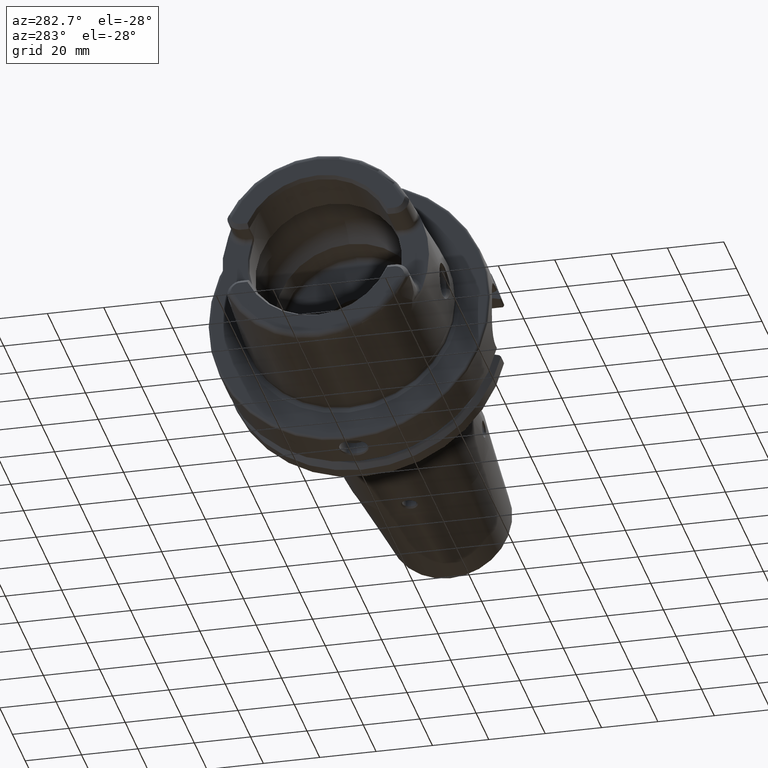
[diagram: clean part render]
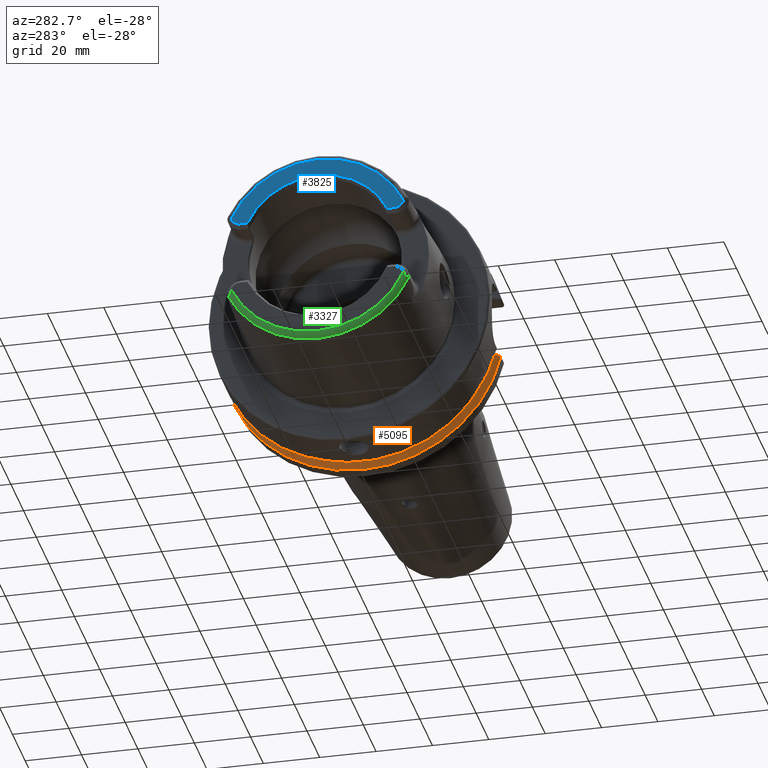
[diagram: same view with three faces highlighted in distinct colors, each labeled with its STEP entity id]
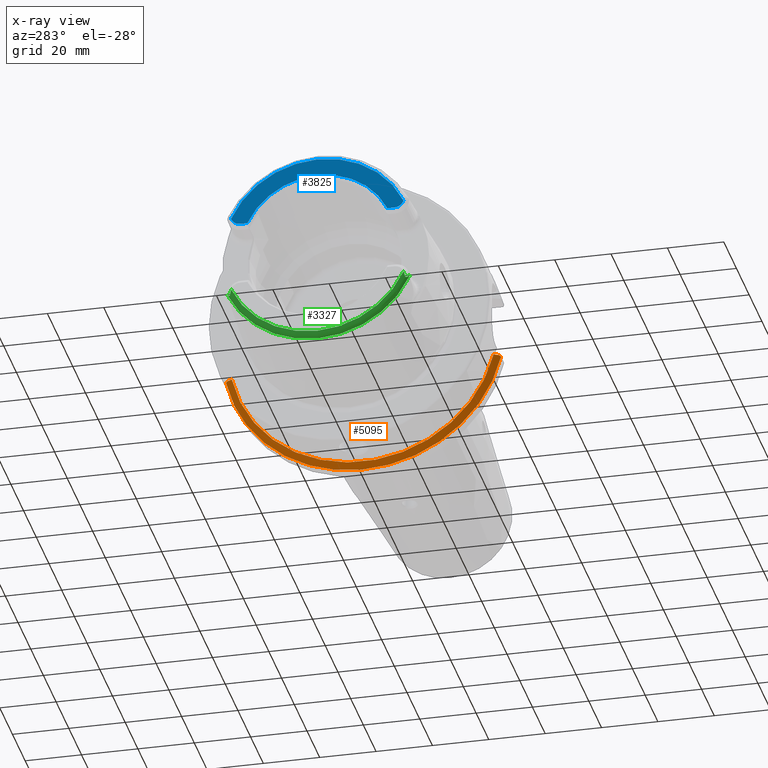
[diagram: x-ray of the same camera — body ghosted, the three highlighted faces saturated]
A machine part, auxiliary view with three faces highlighted in distinct colors.
The next image is the same camera in x-ray (body ghosted, the three faces saturated) — at least one of them is partly hidden behind the body in this view.
Their STEP definitions:

[orange] entity #5095 — the highlighted conical surface has half-angle 60 deg.
#1736=CARTESIAN_POINT('',(2.292384936729E1,-4.82E1,-1.1E1));
#1737=CARTESIAN_POINT('',(2.297737330862E1,-4.827742102738E1,
-1.107742102738E1));
#1738=CARTESIAN_POINT('',(2.308485485635E1,-4.843271839288E1,
-1.123271839288E1));
#1739=CARTESIAN_POINT('',(2.319320386701E1,-4.858892633407E1,
-1.138892633407E1));
#1740=CARTESIAN_POINT('',(2.324759526419E1,-4.866725793949E1,
-1.146725793949E1));
#1742=CARTESIAN_POINT('',(2.324759526419E1,0.E0,0.E0));
#1743=DIRECTION('',(1.E0,0.E0,0.E0));
#1744=DIRECTION('',(0.E0,-9.733451587899E-1,-2.293451587899E-1));
#1745=AXIS2_PLACEMENT_3D('',#1742,#1743,#1744);
#1747=CARTESIAN_POINT('',(2.324759526419E1,4.890531149727E1,-1.040531149727E1));
#1748=CARTESIAN_POINT('',(2.321659280648E1,4.886004318849E1,-1.036004318849E1));
#1749=CARTESIAN_POINT('',(2.315473667974E1,4.876966236934E1,-1.026966236934E1));
#1750=CARTESIAN_POINT('',(2.306239922900E1,4.863455921040E1,-1.013455921040E1));
#1751=CARTESIAN_POINT('',(2.300113781600E1,4.854480120102E1,-1.004480120102E1));
#1752=CARTESIAN_POINT('',(2.297058139228E1,4.85E1,-1.E1));
#1754=CARTESIAN_POINT('',(2.1875E1,4.656083740331E1,-1.E1));
#1755=CARTESIAN_POINT('',(2.199522131820E1,4.677381522932E1,-1.E1));
#1756=CARTESIAN_POINT('',(2.223667140630E1,4.720142676613E1,-1.E1));
#1757=CARTESIAN_POINT('',(2.260186249560E1,4.784780652456E1,-1.E1));
#1758=CARTESIAN_POINT('',(2.284733970784E1,4.828204899002E1,-1.E1));
#1759=CARTESIAN_POINT('',(2.297058139228E1,4.85E1,-1.E1));
#1761=CARTESIAN_POINT('',(2.1875E1,0.E0,0.E0));
#1762=DIRECTION('',(-1.E0,0.E0,0.E0));
#1763=DIRECTION('',(0.E0,9.777047459300E-1,-2.099843560504E-1));
#1764=AXIS2_PLACEMENT_3D('',#1761,#1762,#1763);
#1766=CARTESIAN_POINT('',(2.292384936729E1,-4.82E1,-1.1E1));
#1767=CARTESIAN_POINT('',(2.280585161208E1,-4.799036718895E1,-1.1E1));
#1768=CARTESIAN_POINT('',(2.257082792350E1,-4.757269268648E1,-1.1E1));
#1769=CARTESIAN_POINT('',(2.222121423283E1,-4.695095970886E1,-1.1E1));
#1770=CARTESIAN_POINT('',(2.199008036717E1,-4.653964225334E1,-1.1E1));
#1771=CARTESIAN_POINT('',(2.1875E1,-4.633477721644E1,-1.1E1));
#2850=CARTESIAN_POINT('',(2.1875E1,4.656083740331E1,-1.E1));
#2851=VERTEX_POINT('',#2850);
#2874=CARTESIAN_POINT('',(2.1875E1,-4.633477721644E1,-1.1E1));
#2875=VERTEX_POINT('',#2874);
#3100=VERTEX_POINT('',#1747);
#3101=VERTEX_POINT('',#1752);
#3116=VERTEX_POINT('',#1736);
#3117=VERTEX_POINT('',#1740);
#5081=CARTESIAN_POINT('',(2.256129763210E1,0.E0,0.E0));
#5082=DIRECTION('',(1.E0,0.E0,0.E0));
#5083=DIRECTION('',(0.E0,0.E0,1.E0));
#5084=AXIS2_PLACEMENT_3D('',#5081,#5082,#5083);
#5085=CONICAL_SURFACE('',#5084,4.881129763210E1,6.E1);
#5086=ORIENTED_EDGE('',*,*,#4789,.T.);
#5087=ORIENTED_EDGE('',*,*,#4683,.T.);
#5088=ORIENTED_EDGE('',*,*,#4974,.T.);
#5089=ORIENTED_EDGE('',*,*,#5000,.F.);
#5091=ORIENTED_EDGE('',*,*,#5090,.T.);
#5092=ORIENTED_EDGE('',*,*,#5047,.F.);
#5093=EDGE_LOOP('',(#5086,#5087,#5088,#5089,#5091,#5092));
#5094=FACE_OUTER_BOUND('',#5093,.F.);
#5095=ADVANCED_FACE('',(#5094),#5085,.T.);
#1741=B_SPLINE_CURVE_WITH_KNOTS('',3,(#1736,#1737,#1738,#1739,#1740),
.UNSPECIFIED.,.F.,.F.,(4,1,4),(0.E0,5.E-1,1.E0),.UNSPECIFIED.);
#1746=CIRCLE('',#1745,5.E1);
#1753=B_SPLINE_CURVE_WITH_KNOTS('',3,(#1747,#1748,#1749,#1750,#1751,#1752),
.UNSPECIFIED.,.F.,.F.,(4,1,1,4),(0.E0,3.333333333333E-1,6.666666666667E-1,1.E0),
.UNSPECIFIED.);
#1760=B_SPLINE_CURVE_WITH_KNOTS('',3,(#1754,#1755,#1756,#1757,#1758,#1759),
.UNSPECIFIED.,.F.,.F.,(4,1,1,4),(0.E0,3.333333333333E-1,6.666666666667E-1,1.E0),
.UNSPECIFIED.);
#1765=CIRCLE('',#1764,4.762259526419E1);
#1772=B_SPLINE_CURVE_WITH_KNOTS('',3,(#1766,#1767,#1768,#1769,#1770,#1771),
.UNSPECIFIED.,.F.,.F.,(4,1,1,4),(0.E0,3.333333333333E-1,6.666666666667E-1,1.E0),
.UNSPECIFIED.);
#4683=EDGE_CURVE('',#3117,#3100,#1746,.T.);
#4789=EDGE_CURVE('',#3116,#3117,#1741,.T.);
#4974=EDGE_CURVE('',#3100,#3101,#1753,.T.);
#5000=EDGE_CURVE('',#2851,#3101,#1760,.T.);
#5047=EDGE_CURVE('',#3116,#2875,#1772,.T.);
#5090=EDGE_CURVE('',#2851,#2875,#1765,.T.);

[blue] entity #3825 — the highlighted planar face has unit normal (1, 0, 0).
#728=DIRECTION('',(0.E0,1.E0,0.E0));
#729=VECTOR('',#728,2.542208185169E0);
#730=CARTESIAN_POINT('',(-5.E1,2.482779181483E1,1.151E1));
#731=LINE('',#730,#729);
#732=CARTESIAN_POINT('',(-5.E1,2.737E1,1.489E1));
#733=DIRECTION('',(1.E0,0.E0,0.E0));
#734=DIRECTION('',(0.E0,-1.261318465846E-14,-1.E0));
#735=AXIS2_PLACEMENT_3D('',#732,#733,#734);
#737=CARTESIAN_POINT('',(-5.E1,-2.737E1,1.489E1));
#738=DIRECTION('',(-1.E0,0.E0,0.E0));
#739=DIRECTION('',(0.E0,1.261318465846E-14,-1.E0));
#740=AXIS2_PLACEMENT_3D('',#737,#738,#739);
#742=DIRECTION('',(0.E0,-1.E0,0.E0));
#743=VECTOR('',#742,2.542208185169E0);
#744=CARTESIAN_POINT('',(-5.E1,-2.482779181483E1,1.151E1));
#745=LINE('',#744,#743);
#815=CARTESIAN_POINT('',(-5.E1,-2.664535259100E-14,0.E0));
#816=DIRECTION('',(1.E0,0.E0,0.E0));
#817=DIRECTION('',(0.E0,9.072487308076E-1,4.205945083428E-1));
#818=AXIS2_PLACEMENT_3D('',#815,#816,#817);
#871=CARTESIAN_POINT('',(-5.E1,0.E0,0.E0));
#872=DIRECTION('',(-1.E0,0.E0,0.E0));
#873=DIRECTION('',(0.E0,-9.107116187708E-1,4.130427912890E-1));
#874=AXIS2_PLACEMENT_3D('',#871,#872,#873);
#3017=CARTESIAN_POINT('',(-5.E1,-2.737E1,1.151E1));
#3019=VERTEX_POINT('',#3017);
#3021=CARTESIAN_POINT('',(-5.E1,-2.482779181483E1,1.151E1));
#3022=VERTEX_POINT('',#3021);
#3023=CARTESIAN_POINT('',(-5.E1,-3.059420437526E1,1.387564988957E1));
#3024=VERTEX_POINT('',#3023);
#3031=CARTESIAN_POINT('',(-5.E1,2.737E1,1.151E1));
#3033=VERTEX_POINT('',#3031);
#3035=CARTESIAN_POINT('',(-5.E1,2.482779181483E1,1.151E1));
#3036=VERTEX_POINT('',#3035);
#3037=CARTESIAN_POINT('',(-5.E1,3.059420437526E1,1.387564988957E1));
#3038=VERTEX_POINT('',#3037);
#3806=CARTESIAN_POINT('',(-5.E1,0.E0,0.E0));
#3807=DIRECTION('',(1.E0,0.E0,0.E0));
#3808=DIRECTION('',(0.E0,0.E0,1.E0));
#3809=AXIS2_PLACEMENT_3D('',#3806,#3807,#3808);
#3810=PLANE('',#3809);
#3812=ORIENTED_EDGE('',*,*,#3811,.T.);
#3814=ORIENTED_EDGE('',*,*,#3813,.T.);
#3816=ORIENTED_EDGE('',*,*,#3815,.F.);
#3818=ORIENTED_EDGE('',*,*,#3817,.F.);
#3820=ORIENTED_EDGE('',*,*,#3819,.F.);
#3822=ORIENTED_EDGE('',*,*,#3821,.F.);
#3823=EDGE_LOOP('',(#3812,#3814,#3816,#3818,#3820,#3822));
#3824=FACE_OUTER_BOUND('',#3823,.F.);
#3825=ADVANCED_FACE('',(#3824),#3810,.F.);
#736=CIRCLE('',#735,3.38E0);
#741=CIRCLE('',#740,3.38E0);
#819=CIRCLE('',#818,2.736602540378E1);
#875=CIRCLE('',#874,3.359373455294E1);
#3811=EDGE_CURVE('',#3036,#3033,#731,.T.);
#3813=EDGE_CURVE('',#3033,#3038,#736,.T.);
#3815=EDGE_CURVE('',#3024,#3038,#875,.T.);
#3817=EDGE_CURVE('',#3019,#3024,#741,.T.);
#3819=EDGE_CURVE('',#3022,#3019,#745,.T.);
#3821=EDGE_CURVE('',#3036,#3022,#819,.T.);

[green] entity #3327 — the highlighted toroidal blend (fillet) surface has major radius 33.5937 mm and minor (blend) radius 2 mm.
#2=CARTESIAN_POINT('',(-4.810007223652E1,0.E0,0.E0));
#3=DIRECTION('',(-1.E0,0.E0,0.E0));
#4=DIRECTION('',(0.E0,9.060367502718E-1,-4.231990160161E-1));
#5=AXIS2_PLACEMENT_3D('',#2,#3,#4);
#95=CARTESIAN_POINT('',(-5.E1,3.059420437526E1,-1.387564988957E1));
#96=CARTESIAN_POINT('',(-5.E1,3.062937655328E1,-1.398744786651E1));
#97=CARTESIAN_POINT('',(-4.999089188957E1,3.069324847764E1,-1.420067359598E1));
#98=CARTESIAN_POINT('',(-4.995858869338E1,3.077190565272E1,-1.449032562099E1));
#99=CARTESIAN_POINT('',(-4.991298144907E1,3.083750696256E1,-1.475509899818E1));
#100=CARTESIAN_POINT('',(-4.985776612535E1,3.089308041130E1,-1.499557576183E1));
#101=CARTESIAN_POINT('',(-4.979495680989E1,3.094232778046E1,-1.521393310901E1));
#102=CARTESIAN_POINT('',(-4.972360438561E1,3.099010432134E1,-1.541404156234E1));
#103=CARTESIAN_POINT('',(-4.964589492684E1,3.103958064051E1,-1.558627230071E1));
#104=CARTESIAN_POINT('',(-4.955723649352E1,3.109959946618E1,-1.573108074587E1));
#105=CARTESIAN_POINT('',(-4.945312232293E1,3.118225704897E1,-1.583194799806E1));
#106=CARTESIAN_POINT('',(-4.933404762138E1,3.129828990280E1,-1.585890352672E1));
#107=CARTESIAN_POINT('',(-4.921353185632E1,3.143432137689E1,-1.580868497085E1));
#108=CARTESIAN_POINT('',(-4.910770149308E1,3.156079240615E1,-1.572350157184E1));
#109=CARTESIAN_POINT('',(-4.899971401366E1,3.169137441366E1,-1.561087951899E1));
#110=CARTESIAN_POINT('',(-4.888724667350E1,3.182575845255E1,-1.547332317816E1));
#111=CARTESIAN_POINT('',(-4.876720056629E1,3.196480350055E1,-1.531105099350E1));
#112=CARTESIAN_POINT('',(-4.863888427929E1,3.210676820877E1,-1.512487959147E1));
#113=CARTESIAN_POINT('',(-4.854739858617E1,3.220223751003E1,-1.498502512149E1));
#114=CARTESIAN_POINT('',(-4.85E1,3.224995489266E1,-1.491098202986E1));
#116=CARTESIAN_POINT('',(-5.E1,0.E0,0.E0));
#117=DIRECTION('',(-1.E0,0.E0,0.E0));
#118=DIRECTION('',(0.E0,9.107116187708E-1,-4.130427912890E-1));
#119=AXIS2_PLACEMENT_3D('',#116,#117,#118);
#121=CARTESIAN_POINT('',(-4.85E1,-3.224995489266E1,-1.491098202986E1));
#122=CARTESIAN_POINT('',(-4.855074283124E1,-3.219887077202E1,
-1.499024929090E1));
#123=CARTESIAN_POINT('',(-4.864891901277E1,-3.209619950703E1,
-1.514015471598E1));
#124=CARTESIAN_POINT('',(-4.878912089962E1,-3.194004929274E1,
-1.534209463768E1));
#125=CARTESIAN_POINT('',(-4.891831838915E1,-3.178905698415E1,
-1.551344431121E1));
#126=CARTESIAN_POINT('',(-4.903730232697E1,-3.164595595511E1,
-1.565300763746E1));
#127=CARTESIAN_POINT('',(-4.914734329147E1,-3.151301698889E1,
-1.575904280759E1));
#128=CARTESIAN_POINT('',(-4.925763874430E1,-3.138317803280E1,
-1.583362860408E1));
#129=CARTESIAN_POINT('',(-4.937621572287E1,-3.125475950018E1,
-1.585888491049E1));
#130=CARTESIAN_POINT('',(-4.949050208407E1,-3.115065554436E1,
-1.580438686198E1));
#131=CARTESIAN_POINT('',(-4.958842501649E1,-3.107775531862E1,
-1.568588731476E1));
#132=CARTESIAN_POINT('',(-4.966941039193E1,-3.102457547468E1,
-1.553784165399E1));
#133=CARTESIAN_POINT('',(-4.973987881872E1,-3.097951334374E1,
-1.537111166122E1));
#134=CARTESIAN_POINT('',(-4.980452834500E1,-3.093525193114E1,
-1.518263258997E1));
#135=CARTESIAN_POINT('',(-4.986374342687E1,-3.088762876373E1,
-1.497160831411E1));
#136=CARTESIAN_POINT('',(-4.991671029636E1,-3.083289801661E1,
-1.473589472194E1));
#137=CARTESIAN_POINT('',(-4.996068715475E1,-3.076778033206E1,
-1.447461057182E1));
#138=CARTESIAN_POINT('',(-4.999139168833E1,-3.069063123317E1,
-1.419178376552E1));
#139=CARTESIAN_POINT('',(-5.E1,-3.062836175552E1,-1.398422223922E1));
#140=CARTESIAN_POINT('',(-5.E1,-3.059420437526E1,-1.387564988957E1));
#167=CARTESIAN_POINT('',(-4.810007223652E1,3.224696179732E1,-1.506217324853E1));
#168=CARTESIAN_POINT('',(-4.816954631861E1,3.224727588721E1,-1.505327637031E1));
#169=CARTESIAN_POINT('',(-4.830558220453E1,3.224853348003E1,-1.501730718075E1));
#170=CARTESIAN_POINT('',(-4.843563660986E1,3.224978303287E1,-1.495095280569E1));
#171=CARTESIAN_POINT('',(-4.85E1,3.224995489266E1,-1.491098202986E1));
#563=CARTESIAN_POINT('',(-4.810007223652E1,0.E0,0.E0));
#564=DIRECTION('',(-1.E0,0.E0,0.E0));
#565=DIRECTION('',(0.E0,0.E0,-1.E0));
#566=AXIS2_PLACEMENT_3D('',#563,#564,#565);
#718=CARTESIAN_POINT('',(-4.85E1,-3.224995489266E1,-1.491098202986E1));
#719=CARTESIAN_POINT('',(-4.843511487337E1,-3.224978163976E1,
-1.495127681306E1));
#720=CARTESIAN_POINT('',(-4.830439162895E1,-3.224851898027E1,
-1.501778051965E1));
#721=CARTESIAN_POINT('',(-4.816894104837E1,-3.224727315081E1,
-1.505335388145E1));
#722=CARTESIAN_POINT('',(-4.810007223652E1,-3.224696179732E1,
-1.506217324853E1));
#2991=CARTESIAN_POINT('',(-4.810007223652E1,0.E0,-3.559122937082E1));
#2992=CARTESIAN_POINT('',(-4.810007223652E1,-3.224696179732E1,
-1.506217324853E1));
#2993=VERTEX_POINT('',#2991);
#2994=VERTEX_POINT('',#2992);
#2995=CARTESIAN_POINT('',(-4.810007223652E1,3.224696179732E1,
-1.506217324853E1));
#2996=VERTEX_POINT('',#2995);
#3007=CARTESIAN_POINT('',(-5.E1,-3.059420437526E1,-1.387564988957E1));
#3008=VERTEX_POINT('',#3007);
#3013=CARTESIAN_POINT('',(-4.85E1,-3.224995489266E1,-1.491098202986E1));
#3014=VERTEX_POINT('',#3013);
#3051=CARTESIAN_POINT('',(-5.E1,3.059420437526E1,-1.387564988957E1));
#3052=VERTEX_POINT('',#3051);
#3055=CARTESIAN_POINT('',(-4.85E1,3.224995489266E1,-1.491098202986E1));
#3056=VERTEX_POINT('',#3055);
#3307=CARTESIAN_POINT('',(-4.8E1,0.E0,0.E0));
#3308=DIRECTION('',(1.E0,0.E0,0.E0));
#3309=DIRECTION('',(0.E0,-9.999995644445E-1,9.333331978271E-4));
#3310=AXIS2_PLACEMENT_3D('',#3307,#3308,#3309);
#3311=TOROIDAL_SURFACE('',#3310,3.359373455294E1,2.E0);
#3313=ORIENTED_EDGE('',*,*,#3312,.F.);
#3315=ORIENTED_EDGE('',*,*,#3314,.T.);
#3317=ORIENTED_EDGE('',*,*,#3316,.F.);
#3319=ORIENTED_EDGE('',*,*,#3318,.T.);
#3321=ORIENTED_EDGE('',*,*,#3320,.F.);
#3322=ORIENTED_EDGE('',*,*,#3278,.F.);
#3324=ORIENTED_EDGE('',*,*,#3323,.T.);
#3325=EDGE_LOOP('',(#3313,#3315,#3317,#3319,#3321,#3322,#3324));
#3326=FACE_OUTER_BOUND('',#3325,.F.);
#3327=ADVANCED_FACE('',(#3326),#3311,.T.);
#6=CIRCLE('',#5,3.559122937082E1);
#115=B_SPLINE_CURVE_WITH_KNOTS('',3,(#95,#96,#97,#98,#99,#100,#101,#102,#103,
#104,#105,#106,#107,#108,#109,#110,#111,#112,#113,#114),.UNSPECIFIED.,.F.,.F.,
(4,1,1,1,1,1,1,1,1,1,1,1,1,1,1,1,1,4),(0.E0,5.882352941176E-2,1.176470588235E-1,
1.764705882353E-1,2.352941176471E-1,2.941176470588E-1,3.529411764706E-1,
4.117647058824E-1,4.705882352941E-1,5.294117647059E-1,5.882352941176E-1,
6.470588235294E-1,7.058823529412E-1,7.647058823529E-1,8.235294117647E-1,
8.823529411765E-1,9.411764705882E-1,1.E0),.UNSPECIFIED.);
#120=CIRCLE('',#119,3.359373455294E1);
#141=B_SPLINE_CURVE_WITH_KNOTS('',3,(#121,#122,#123,#124,#125,#126,#127,#128,
#129,#130,#131,#132,#133,#134,#135,#136,#137,#138,#139,#140),.UNSPECIFIED.,.F.,
.F.,(4,1,1,1,1,1,1,1,1,1,1,1,1,1,1,1,1,4),(0.E0,5.882352941176E-2,
1.176470588235E-1,1.764705882353E-1,2.352941176471E-1,2.941176470588E-1,
3.529411764706E-1,4.117647058824E-1,4.705882352941E-1,5.294117647059E-1,
5.882352941176E-1,6.470588235294E-1,7.058823529412E-1,7.647058823529E-1,
8.235294117647E-1,8.823529411765E-1,9.411764705882E-1,1.E0),.UNSPECIFIED.);
#172=B_SPLINE_CURVE_WITH_KNOTS('',3,(#167,#168,#169,#170,#171),.UNSPECIFIED.,
.F.,.F.,(4,1,4),(0.E0,5.E-1,1.E0),.UNSPECIFIED.);
#567=CIRCLE('',#566,3.559122937082E1);
#723=B_SPLINE_CURVE_WITH_KNOTS('',3,(#718,#719,#720,#721,#722),.UNSPECIFIED.,
.F.,.F.,(4,1,4),(0.E0,5.E-1,1.E0),.UNSPECIFIED.);
#3278=EDGE_CURVE('',#2996,#2993,#6,.T.);
#3312=EDGE_CURVE('',#3052,#3056,#115,.T.);
#3314=EDGE_CURVE('',#3052,#3008,#120,.T.);
#3316=EDGE_CURVE('',#3014,#3008,#141,.T.);
#3318=EDGE_CURVE('',#3014,#2994,#723,.T.);
#3320=EDGE_CURVE('',#2993,#2994,#567,.T.);
#3323=EDGE_CURVE('',#2996,#3056,#172,.T.);